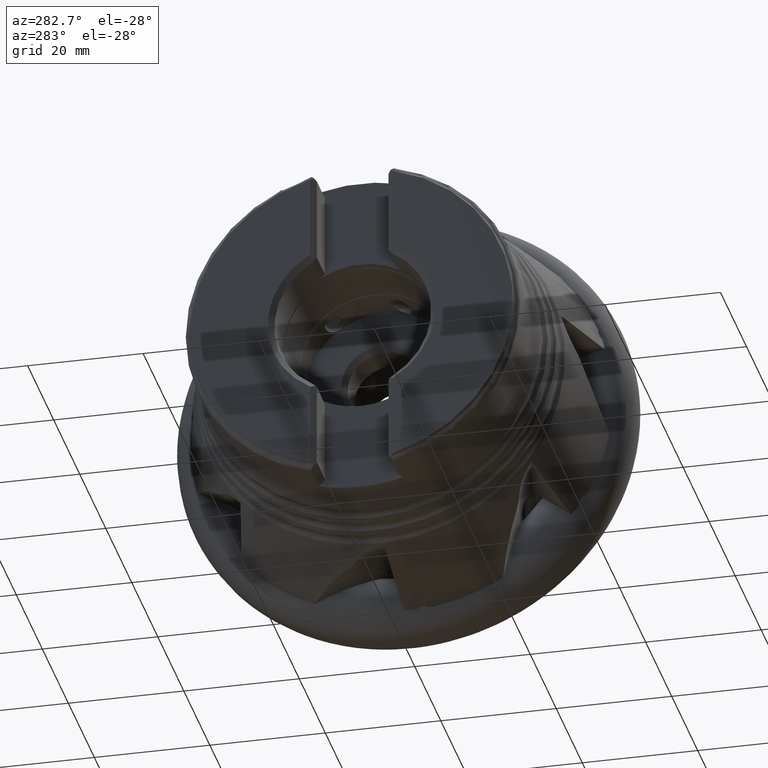
[diagram: clean part render]
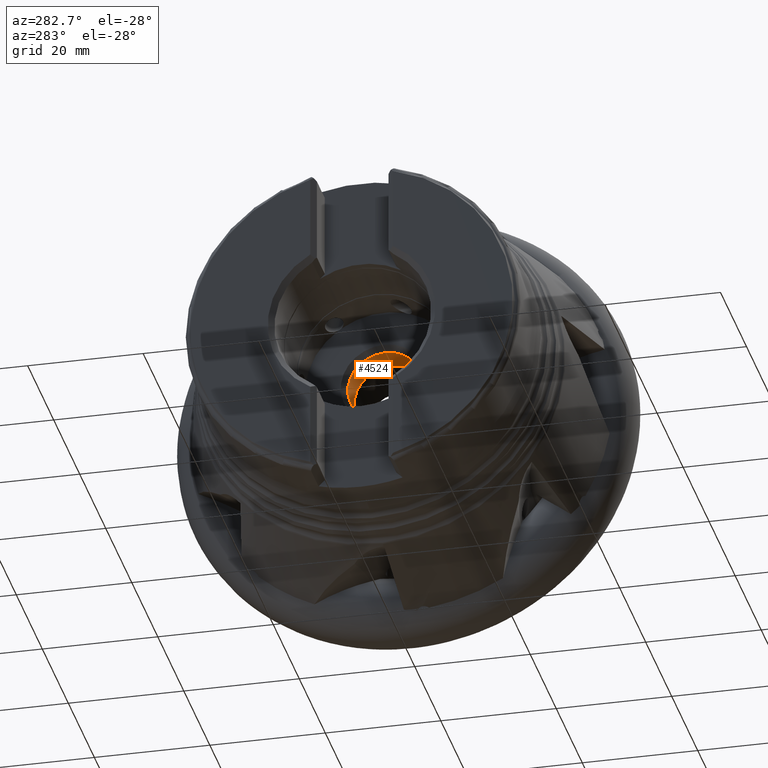
[diagram: same view with one face highlighted and labeled with its STEP entity id]
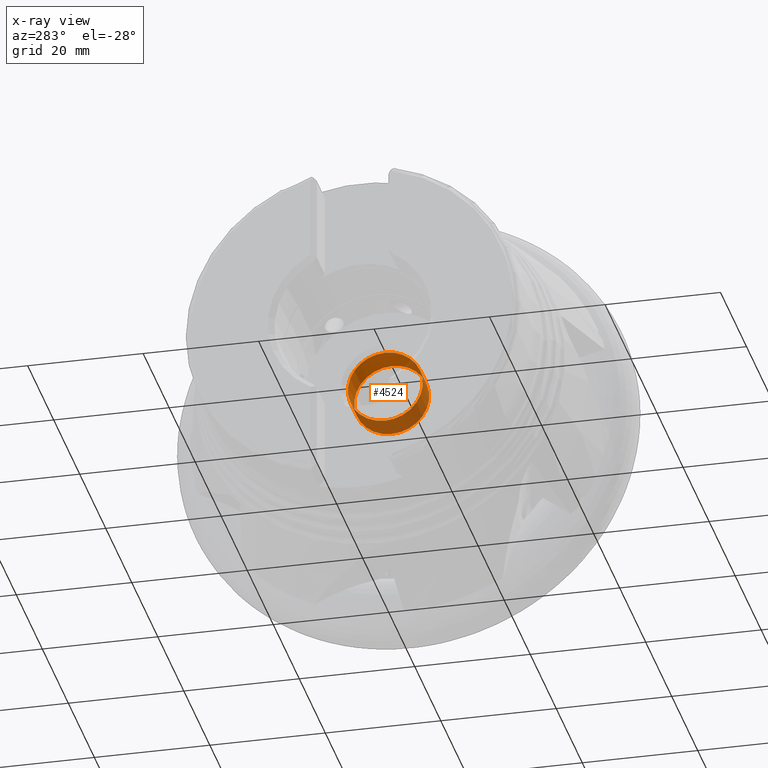
[diagram: x-ray of the same camera — body ghosted, the highlighted face saturated]
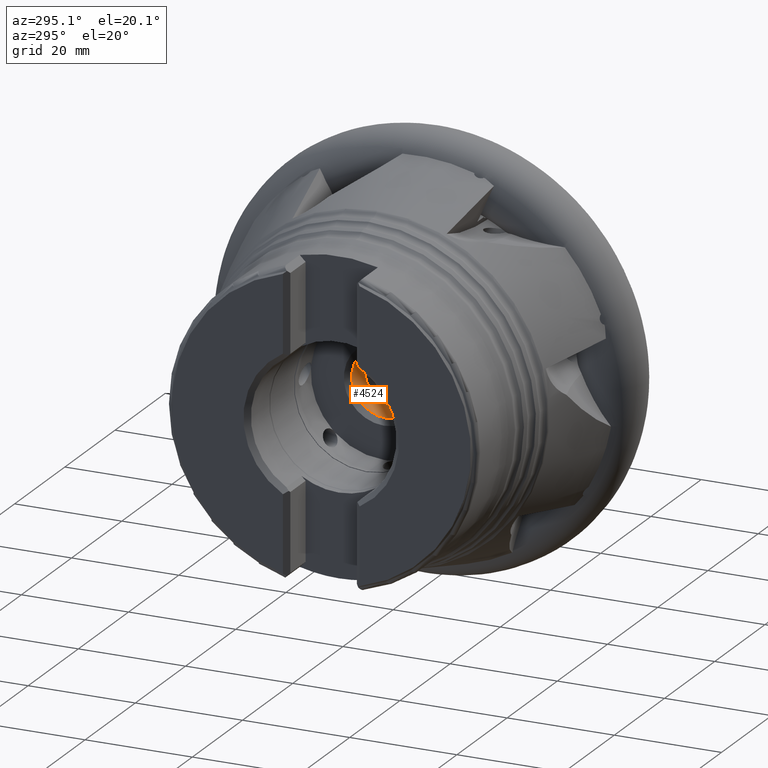
[diagram: same view with one face highlighted and labeled with its STEP entity id]
A machine part, auxiliary view. The second image highlights one B-rep face of the part: STEP entity #4524.
The next image is the same camera in x-ray: the body ghosted, the highlighted face saturated — about 55% of this face is hidden behind the body in this view.
A second angle (auxiliary view) of the same face is appended — the face is thin or edge-on in the first view.
In plain terms, the highlighted cylindrical surface (bore or boss wall) has radius 6.5 mm, axis along (1, -0, -0).
Its self-contained STEP definition (entity closure, byte-faithful):
#611 = ORIENTED_EDGE ( 'NONE', *, *, #4223, .T. ) ;
#1233 = VERTEX_POINT ( 'NONE', #6010 ) ;
#1291 = EDGE_LOOP ( 'NONE', ( #611 ) ) ;
#1595 = DIRECTION ( 'NONE',  ( 1.000000000000000000, -0.0000000000000000000, -0.0000000000000000000 ) ) ;
#1605 = DIRECTION ( 'NONE',  ( 1.000000000000000000, -0.0000000000000000000, -0.0000000000000000000 ) ) ;
#1978 = CARTESIAN_POINT ( 'NONE',  ( -22.64099999999999800, 0.0000000000000000000, -6.499999999999996400 ) ) ;
#2290 = DIRECTION ( 'NONE',  ( 1.000000000000000000, -0.0000000000000000000, -0.0000000000000000000 ) ) ;
#2353 = CYLINDRICAL_SURFACE ( 'NONE', #5455, 6.499999999999997300 ) ;
#2740 = FACE_OUTER_BOUND ( 'NONE', #1291, .T. ) ;
#2768 = ORIENTED_EDGE ( 'NONE', *, *, #3948, .F. ) ;
#3283 = CARTESIAN_POINT ( 'NONE',  ( 0.0000000000000000000, 0.0000000000000000000, 0.0000000000000000000 ) ) ;
#3347 = EDGE_LOOP ( 'NONE', ( #2768 ) ) ;
#3370 = FACE_OUTER_BOUND ( 'NONE', #3347, .T. ) ;
#3948 = EDGE_CURVE ( 'NONE', #6368, #6368, #4354, .T. ) ;
#4223 = EDGE_CURVE ( 'NONE', #1233, #1233, #5732, .T. ) ;
#4296 = DIRECTION ( 'NONE',  ( 0.0000000000000000000, 0.0000000000000000000, -1.000000000000000000 ) ) ;
#4354 = CIRCLE ( 'NONE', #5381, 6.499999999999996400 ) ;
#4524 = ADVANCED_FACE ( 'NONE', ( #3370, #2740 ), #2353, .F. ) ;
#4562 = CARTESIAN_POINT ( 'NONE',  ( -22.64099999999999800, 0.0000000000000000000, 0.0000000000000000000 ) ) ;
#4570 = CARTESIAN_POINT ( 'NONE',  ( -17.68415902113100200, 0.0000000000000000000, 0.0000000000000000000 ) ) ;
#5080 = DIRECTION ( 'NONE',  ( 0.0000000000000000000, 0.0000000000000000000, -1.000000000000000000 ) ) ;
#5090 = DIRECTION ( 'NONE',  ( 0.0000000000000000000, 0.0000000000000000000, -1.000000000000000000 ) ) ;
#5381 = AXIS2_PLACEMENT_3D ( 'NONE', #4562, #1595, #5080 ) ;
#5455 = AXIS2_PLACEMENT_3D ( 'NONE', #3283, #2290, #4296 ) ;
#5732 = CIRCLE ( 'NONE', #5940, 6.499999999999997300 ) ;
#5940 = AXIS2_PLACEMENT_3D ( 'NONE', #4570, #1605, #5090 ) ;
#6010 = CARTESIAN_POINT ( 'NONE',  ( -17.68415902113100200, 0.0000000000000000000, -6.499999999999997300 ) ) ;
#6368 = VERTEX_POINT ( 'NONE', #1978 ) ;